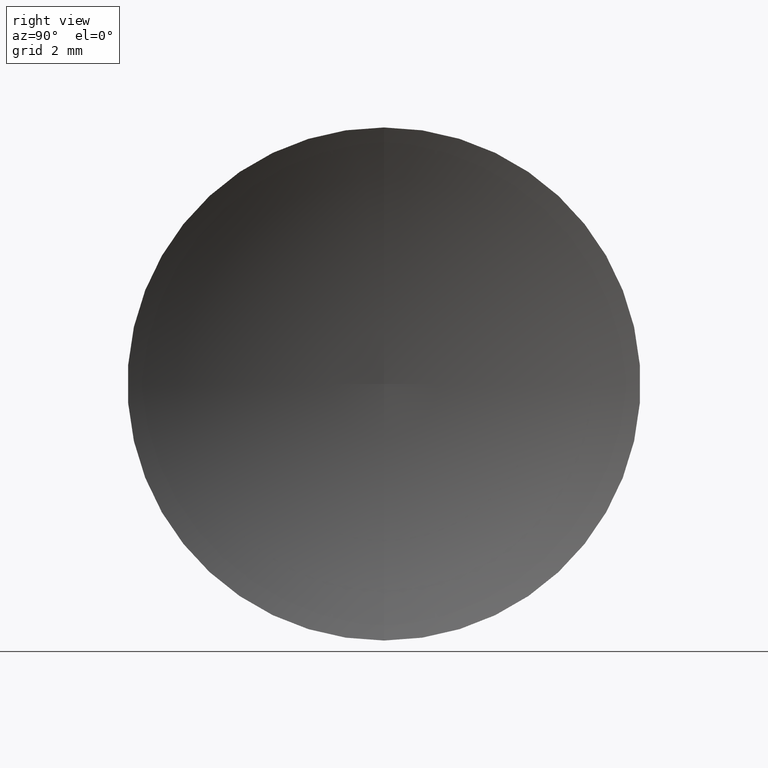
[diagram: clean part render]
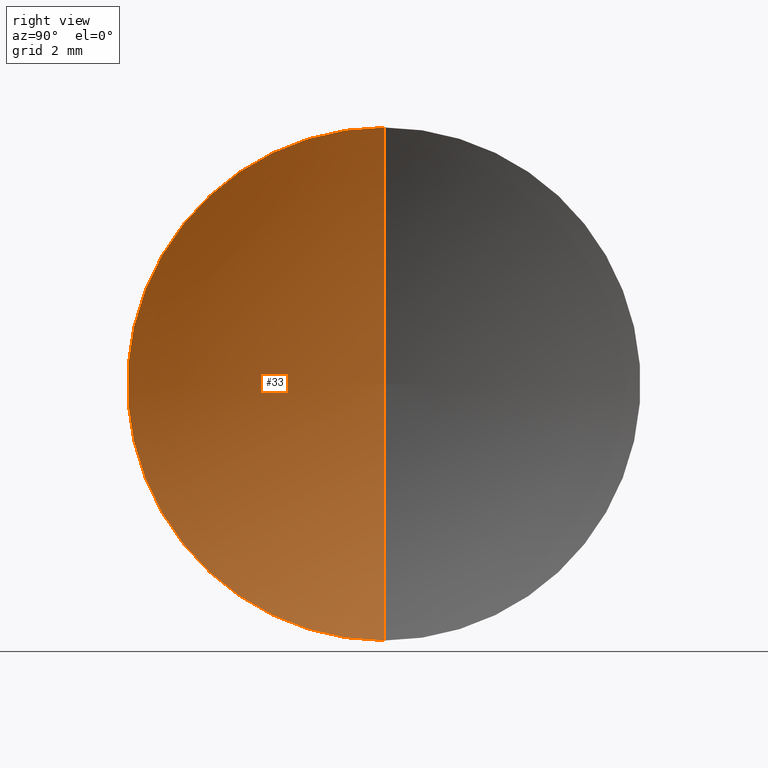
[diagram: same view with one face highlighted and labeled with its STEP entity id]
A machine part, right view. The second image highlights one B-rep face of the part: STEP entity #33.
In plain terms, the highlighted toroidal blend (fillet) surface has major radius 0.0013 mm and minor (blend) radius 20.65 mm.
Its self-contained STEP definition (entity closure, byte-faithful):
#5 = CARTESIAN_POINT ( 'NONE',  ( 47.43122569665025200, 26.08904114919495900, 7.999999999999996400 ) ) ;
#10 = DIRECTION ( 'NONE',  ( 0.0000000000000000000, -1.000000000000000000, 0.0000000000000000000 ) ) ;
#16 = CARTESIAN_POINT ( 'NONE',  ( 45.81915269315437200, 26.08904114919495900, 0.0000000000000000000 ) ) ;
#19 = VERTEX_POINT ( 'NONE', #75 ) ;
#23 = FACE_OUTER_BOUND ( 'NONE', #96, .T. ) ;
#25 = CIRCLE ( 'NONE', #105, 20.65000000000000200 ) ;
#28 = DIRECTION ( 'NONE',  ( 0.0000000000000000000, -1.680119589323783900E-016, 1.000000000000000000 ) ) ;
#33 = ADVANCED_FACE ( 'NONE', ( #23 ), #145, .F. ) ;
#46 = ORIENTED_EDGE ( 'NONE', *, *, #70, .F. ) ;
#50 = CARTESIAN_POINT ( 'NONE',  ( 66.46915265469672800, 26.08904114919495900, 0.001260278013337501300 ) ) ;
#51 = CIRCLE ( 'NONE', #160, 20.65000000000000200 ) ;
#55 = DIRECTION ( 'NONE',  ( -1.000000000000000000, -0.0000000000000000000, -0.0000000000000000000 ) ) ;
#56 = DIRECTION ( 'NONE',  ( -0.0000000000000000000, 1.000000000000000000, 1.224646799147353200E-016 ) ) ;
#60 = ORIENTED_EDGE ( 'NONE', *, *, #104, .F. ) ;
#64 = DIRECTION ( 'NONE',  ( -1.000000000000000000, -0.0000000000000000000, -0.0000000000000000000 ) ) ;
#65 = DIRECTION ( 'NONE',  ( 0.0000000000000000000, 0.0000000000000000000, 1.000000000000000000 ) ) ;
#70 = EDGE_CURVE ( 'NONE', #122, #134, #51, .T. ) ;
#73 = ORIENTED_EDGE ( 'NONE', *, *, #101, .T. ) ;
#75 = CARTESIAN_POINT ( 'NONE',  ( 47.43122569665025200, 26.08904114919495900, -7.999999999999996400 ) ) ;
#78 = DIRECTION ( 'NONE',  ( 0.0000000000000000000, 0.0000000000000000000, 1.000000000000000000 ) ) ;
#88 = CIRCLE ( 'NONE', #130, 7.999999999999996400 ) ;
#96 = EDGE_LOOP ( 'NONE', ( #60, #73, #46 ) ) ;
#101 = EDGE_CURVE ( 'NONE', #19, #134, #25, .T. ) ;
#104 = EDGE_CURVE ( 'NONE', #19, #122, #88, .T. ) ;
#105 = AXIS2_PLACEMENT_3D ( 'NONE', #114, #56, #28 ) ;
#114 = CARTESIAN_POINT ( 'NONE',  ( 66.46915265469672800, 26.08904114919495900, -0.001260278013337501300 ) ) ;
#122 = VERTEX_POINT ( 'NONE', #5 ) ;
#130 = AXIS2_PLACEMENT_3D ( 'NONE', #138, #55, #78 ) ;
#134 = VERTEX_POINT ( 'NONE', #16 ) ;
#138 = CARTESIAN_POINT ( 'NONE',  ( 47.43122569665025200, 26.08904114919495900, 0.0000000000000000000 ) ) ;
#145 = TOROIDAL_SURFACE ( 'NONE', #148, 0.001260278013337501300, 20.65000000000000200 ) ;
#146 = CARTESIAN_POINT ( 'NONE',  ( 66.46915265469672800, 26.08904114919495900, 0.0000000000000000000 ) ) ;
#148 = AXIS2_PLACEMENT_3D ( 'NONE', #146, #64, #65 ) ;
#160 = AXIS2_PLACEMENT_3D ( 'NONE', #50, #10, #164 ) ;
#164 = DIRECTION ( 'NONE',  ( 0.0000000000000000000, 0.0000000000000000000, -1.000000000000000000 ) ) ;